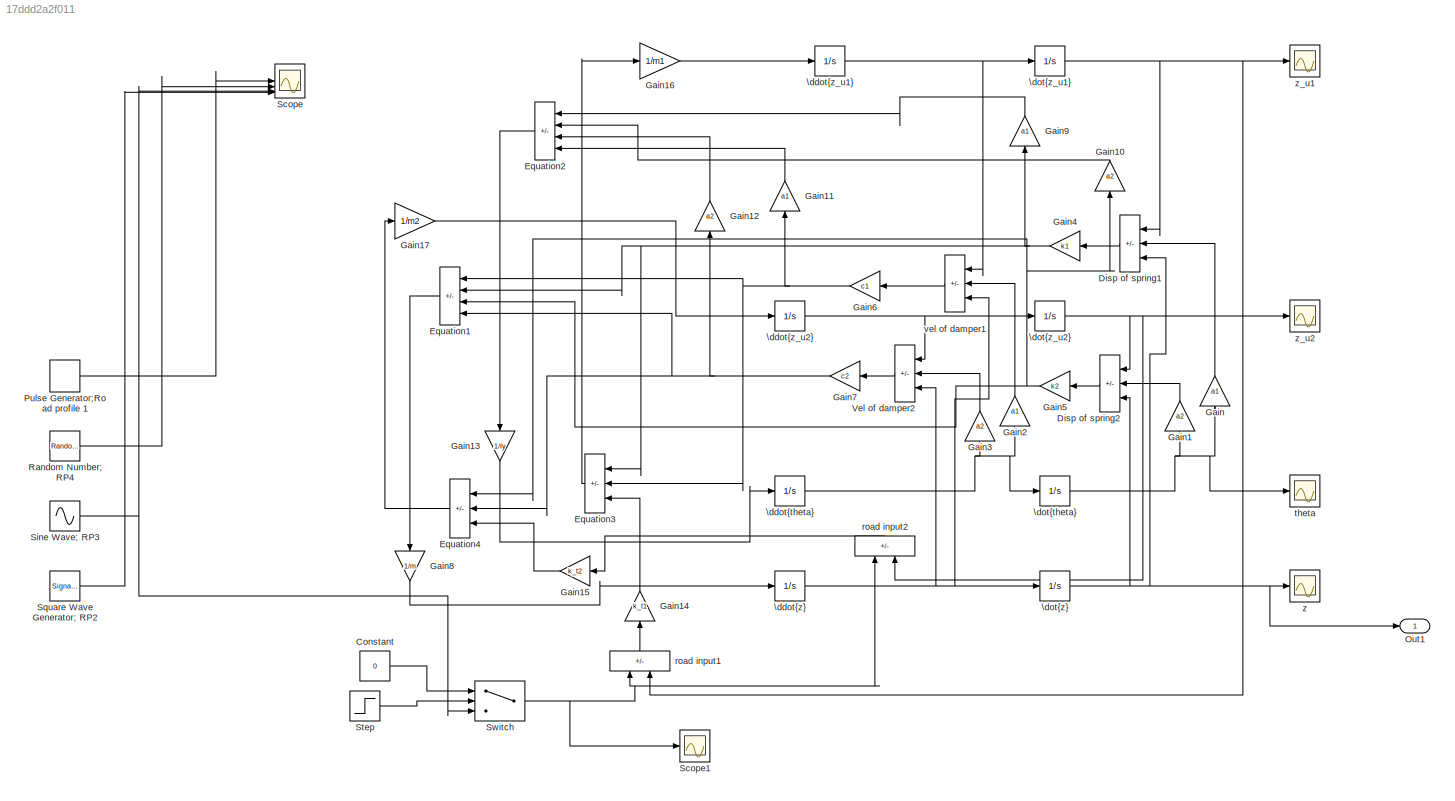
MODEL slx_17ddd2a2f011
KIND model
CONFIG AbsTol = auto
CONFIG EnableMultiTasking = off
CONFIG FixedStep = auto
CONFIG MaxStep = auto
CONFIG MinStep = auto
CONFIG RelTol = 1e-3
CONFIG SampleTimeConstraint = Unconstrained
CONFIG SolverName = VariableStepAuto
CONFIG StartTime = 0.0
CONFIG StopTime = 10.0
BLOCK [Constant] Constant
  Value = 0
BLOCK [Sum] Disp of spring1
  IconShape = rectangular
  Inputs = |--+
BLOCK [Sum] Disp of spring2
  IconShape = rectangular
  Inputs = |-++
BLOCK [Sum] Equation1
  IconShape = rectangular
  Inputs = |----
BLOCK [Sum] Equation2
  IconShape = rectangular
  Inputs = |+--+
BLOCK [Sum] Equation3
  IconShape = rectangular
  Inputs = |++-
BLOCK [Sum] Equation4
  IconShape = rectangular
  Inputs = |++-
BLOCK [Gain] Gain
  Gain = a1
  NameLocation = right
BLOCK [Gain] Gain1
  Gain = a2
  NameLocation = right
BLOCK [Gain] Gain10
  Gain = a2
  NameLocation = right
BLOCK [Gain] Gain11
  Gain = a1
  NameLocation = right
BLOCK [Gain] Gain12
  Gain = a2
  NameLocation = right
BLOCK [Gain] Gain13
  Gain = 1/Iy
  NameLocation = left
BLOCK [Gain] Gain14
  Gain = k_t1
  NameLocation = right
BLOCK [Gain] Gain15
  Gain = k_t2
  NameLocation = top
BLOCK [Gain] Gain16
  Gain = 1/m1
BLOCK [Gain] Gain17
  Gain = 1/m2
BLOCK [Gain] Gain2
  Gain = a1
  NameLocation = right
BLOCK [Gain] Gain3
  Gain = a2
  NameLocation = right
BLOCK [Gain] Gain4
  Gain = k1
  NameLocation = top
BLOCK [Gain] Gain5
  Gain = k2
  NameLocation = top
BLOCK [Gain] Gain6
  Gain = c1
  NameLocation = top
BLOCK [Gain] Gain7
  Gain = c2
  NameLocation = top
BLOCK [Gain] Gain8
  Gain = 1/m
  NameLocation = left
BLOCK [Gain] Gain9
  Gain = a1
  NameLocation = right
BLOCK [Outport] Out1
  SignalName = Z_Height_Data
BLOCK [DiscretePulseGenerator] Pulse Generator;Road profile 1
  Amplitude = 0.25
  PhaseDelay = 1
  PulseType = Time based
  PulseWidth = 15
BLOCK [RandomNumber] Random Number; RP4
  SampleTime = 0.8
  Variance = 0.25
BLOCK [Scope] Scope
  Floating = off
  NumInputPorts = 5
  ScopeSpecificationString = Simulink.scopes.TimeScopeBlockCfg('CurrentConfiguration', extmgr.ConfigurationSet(extmgr.Configuration('Core','General UI',true),extmgr.Configuration('Core','Source UI',true),extmgr.Configuration('Sources','WiredSimulink',true,'DataLoggingVariableName','ScopeData1'),extmgr.Configuration('Visuals','Time Domain',true,'SerializedDisplays',{struct('MinYLimReal','-0.92579','MaxYLimReal','1.10124','YLab...<+1468ch>
BLOCK [Scope] Scope1
  Floating = off
  NumInputPorts = 1
  ScopeSpecificationString = Simulink.scopes.TimeScopeBlockCfg('CurrentConfiguration', extmgr.ConfigurationSet(extmgr.Configuration('Core','General UI',true),extmgr.Configuration('Core','Source UI',true),extmgr.Configuration('Sources','WiredSimulink',true,'DataLoggingVariableName','ScopeData1'),extmgr.Configuration('Visuals','Time Domain',true,'SerializedDisplays',{struct('MinYLimReal','-0.035','MaxYLimReal','0.315','YLabelRe...<+1353ch>
BLOCK [Sin] Sine Wave; RP3
  Amplitude = 0.28
  Frequency = 0.628
  SampleTime = 0
BLOCK [SignalGenerator] Square Wave Generator; RP2
  Amplitude = 0.28
  Units = rad/sec
  WaveForm = sawtooth
BLOCK [Step] Step
  After = 10
  SampleTime = 0
  Time = 5
BLOCK [Switch] Switch
  Criteria = u2 > Threshold
  InputSameDT = off
  SaturateOnIntegerOverflow = off
BLOCK [Sum] Vel of damper2
  IconShape = rectangular
  Inputs = |-++
BLOCK [Integrator] \ddot{theta}
BLOCK [Integrator] \ddot{z_u1}
BLOCK [Integrator] \ddot{z_u2}
BLOCK [Integrator] \ddot{z}
BLOCK [Integrator] \dot{theta}
BLOCK [Integrator] \dot{z_u1}
BLOCK [Integrator] \dot{z_u2}
BLOCK [Integrator] \dot{z}
BLOCK [Sum] road input1
  IconShape = rectangular
  Inputs = |-+
  NameLocation = left
BLOCK [Sum] road input2
  IconShape = rectangular
  Inputs = |-+
  NameLocation = left
BLOCK [Scope] theta
  Floating = off
  NumInputPorts = 1
  ScopeSpecificationString = Simulink.scopes.TimeScopeBlockCfg('CurrentConfiguration', extmgr.ConfigurationSet(extmgr.Configuration('Core','General UI',true),extmgr.Configuration('Core','Source UI',true),extmgr.Configuration('Sources','WiredSimulink',true,'DataLoggingVariableName','ScopeData2'),extmgr.Configuration('Visuals','Time Domain',true,'SerializedDisplays',{struct('MinYLimReal','-0.00734','MaxYLimReal','0.0067','YLabe...<+1368ch>
BLOCK [Sum] vel of damper1
  IconShape = rectangular
  Inputs = |--+
BLOCK [Scope] z
  Floating = off
  NumInputPorts = 1
  ScopeSpecificationString = Simulink.scopes.TimeScopeBlockCfg('CurrentConfiguration', extmgr.ConfigurationSet(extmgr.Configuration('Core','General UI',true),extmgr.Configuration('Core','Source UI',true),extmgr.Configuration('Sources','WiredSimulink',true,'DataLoggingVariableName','Z_Height_Data','DataLogging',true,'DataLoggingSaveFormat','Array'),extmgr.Configuration('Visuals','Time Domain',true,'SerializedDisplays',{struct(...<+1420ch>
BLOCK [Scope] z_u1
  Floating = off
  NumInputPorts = 1
  ScopeSpecificationString = Simulink.scopes.TimeScopeBlockCfg('CurrentConfiguration', extmgr.ConfigurationSet(extmgr.Configuration('Core','General UI',true),extmgr.Configuration('Core','Source UI',true),extmgr.Configuration('Sources','WiredSimulink',true),extmgr.Configuration('Visuals','Time Domain',true,'SerializedDisplays',{struct('MinYLimReal','-0.04333','MaxYLimReal','0.39001','YLabelReal','','MinYLimMag','0.00000','MaxY...<+1361ch>
BLOCK [Scope] z_u2
  Floating = off
  NumInputPorts = 1
  ScopeSpecificationString = Simulink.scopes.TimeScopeBlockCfg('CurrentConfiguration', extmgr.ConfigurationSet(extmgr.Configuration('Core','General UI',true),extmgr.Configuration('Core','Source UI',true),extmgr.Configuration('Sources','WiredSimulink',true,'DataLoggingVariableName','ScopeData1'),extmgr.Configuration('Visuals','Time Domain',true,'SerializedDisplays',{struct('MinYLimReal','-0.05001','MaxYLimReal','0.38085','YLab...<+1402ch>
LINE Constant:1 -> Switch:1
LINE Disp of spring1:1 -> Gain4:1
LINE Disp of spring2:1 -> Gain5:1
LINE Equation1:1 -> Gain8:1
LINE Equation2:1 -> Gain13:1
LINE Equation3:1 -> Gain16:1
LINE Equation4:1 -> Gain17:1
LINE Gain10:1 -> Equation2:2
LINE Gain11:1 -> Equation2:4
LINE Gain12:1 -> Equation2:3
LINE Gain13:1 -> \ddot{theta}:1
LINE Gain14:1 -> Equation3:3
LINE Gain15:1 -> Equation4:3
LINE Gain16:1 -> \ddot{z_u1}:1
LINE Gain17:1 -> \ddot{z_u2}:1
LINE Gain1:1 -> Disp of spring2:2
LINE Gain2:1 -> vel of damper1:2
LINE Gain3:1 -> Vel of damper2:2
NET Gain4:1 -> Equation1:2, Equation3:1, Gain9:1
NET Gain5:1 -> Equation1:3, Equation4:1, Gain10:1
NET Gain6:1 -> Equation1:1, Equation3:2, Gain11:1
NET Gain7:1 -> Equation1:4, Equation4:2, Gain12:1
LINE Gain8:1 -> \ddot{z}:1
LINE Gain9:1 -> Equation2:1
LINE Gain:1 -> Disp of spring1:2
LINE Pulse Generator;Road profile 1:1 -> Scope:1
LINE Random Number; RP4:1 -> Scope:2
NET Sine Wave; RP3:1 -> Scope:4, Switch:3
LINE Square Wave Generator; RP2:1 -> Scope:5
LINE Step:1 -> Switch:2
NET Switch:1 -> Scope1:1, road input1:1, road input2:1
LINE Vel of damper2:1 -> Gain7:1
NET \ddot{theta}:1 -> Gain2:1, Gain3:1, \dot{theta}:1
NET \ddot{z_u1}:1 -> \dot{z_u1}:1, vel of damper1:1
NET \ddot{z_u2}:1 -> Vel of damper2:1, \dot{z_u2}:1
NET \ddot{z}:1 -> Vel of damper2:3, \dot{z}:1, vel of damper1:3
NET \dot{theta}:1 -> Gain1:1, Gain:1, theta:1
NET \dot{z_u1}:1 -> Disp of spring1:1, road input1:2, z_u1:1
NET \dot{z_u2}:1 -> Disp of spring2:1, road input2:2, z_u2:1
NET \dot{z}:1 -> Disp of spring1:3, Disp of spring2:3, Out1:1, z:1
LINE road input1:1 -> Gain14:1
LINE road input2:1 -> Gain15:1
LINE vel of damper1:1 -> Gain6:1
note: NET lines group one-source signal fan-out (src -> all destinations, sorted); 1:1 wires keep LINE
